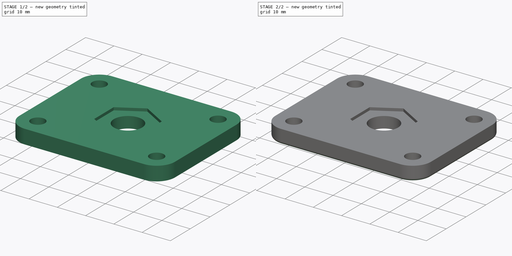
[diagram: build sequence overview — one tinted view per stage of 2, left to right]
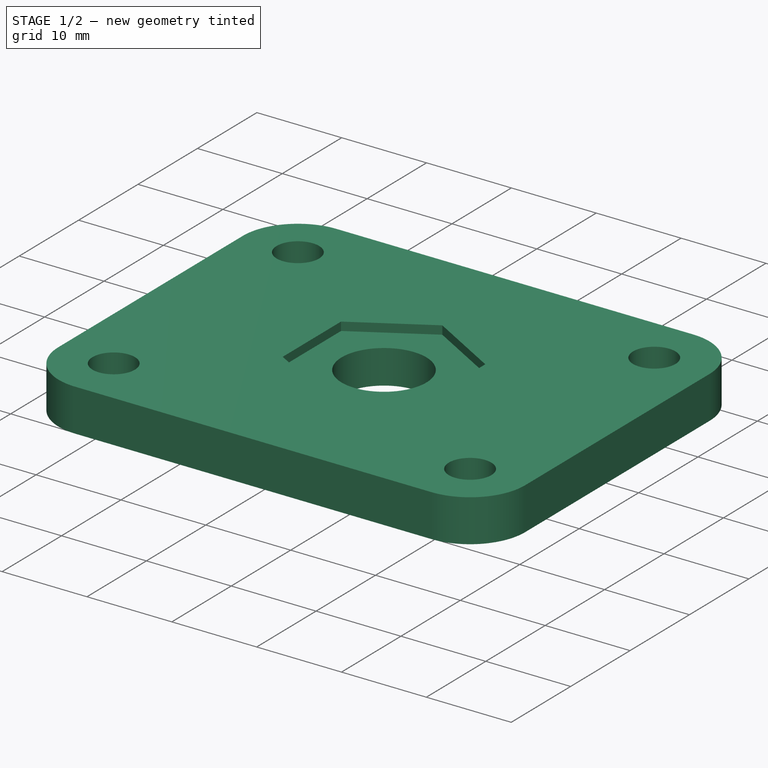
[diagram: stage 1 of 2 — iso view after this stage's code; geometry added in this stage tinted green]
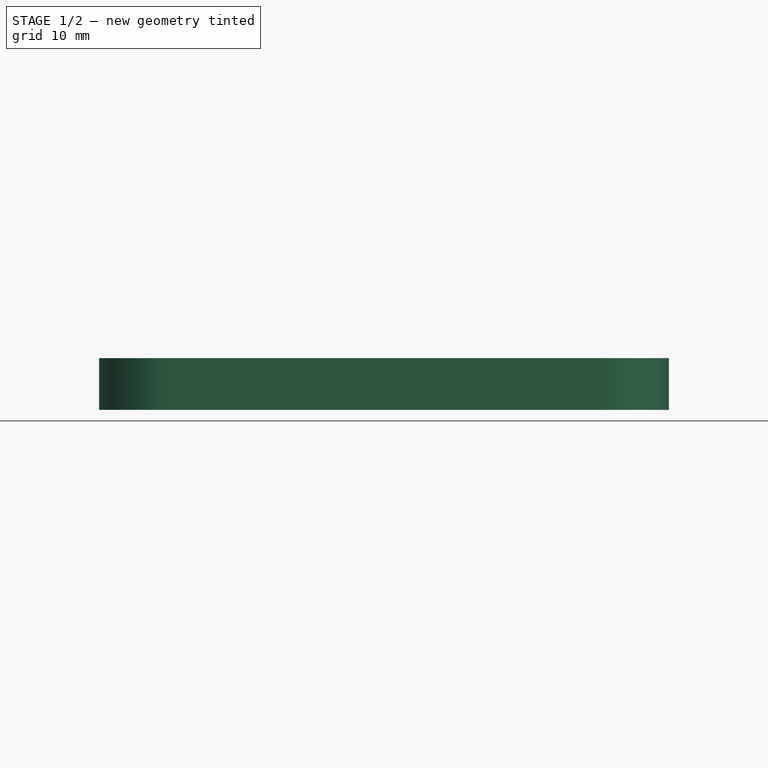
[diagram: stage 1 of 2 — front view after this stage's code; geometry added in this stage tinted green]
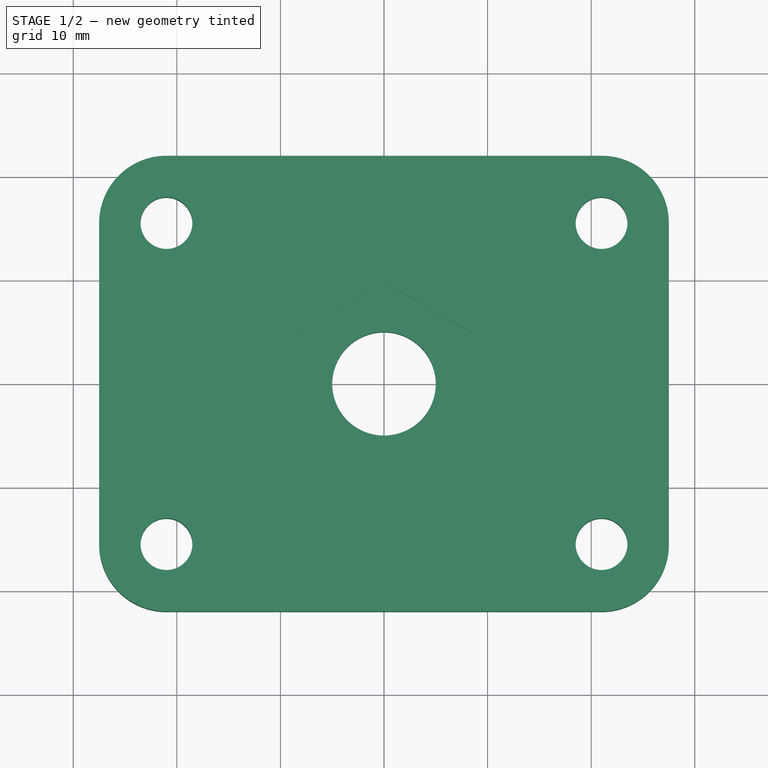
[diagram: stage 1 of 2 — top view after this stage's code; geometry added in this stage tinted green]
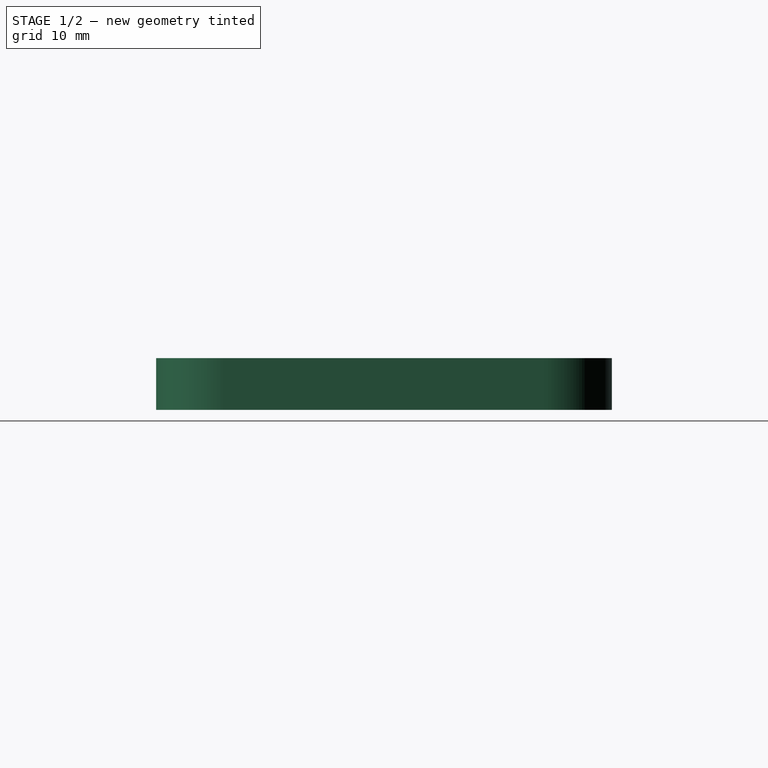
[diagram: stage 1 of 2 — right view after this stage's code; geometry added in this stage tinted green]
FCSTD DOCUMENT  (FreeCAD 0.19R24291 (Git))
Label: Соединительная планка для переворота
License: All rights reserved
LicenseURL: http://en.wikipedia.org/wiki/All_rights_reserved
objects: Sketcher::SketchObject×2, PartDesign::Pad×1, PartDesign::Pocket×1, PartDesign::Fillet×1, PartDesign::Body×1
note: 9 computed .brp shape members not serialized (recipe doc carries the construction recipe); baked Part::Feature solids carry a one-line shape summary decoded from their .brp

FEATURE [Sketcher::SketchObject] Sketch
  FullyConstrained = true
  MapMode = 5
  Support = -> [XY_Plane]
  sketch-geometry (21):
    g0: Circle CenterX=0 CenterY=0 CenterZ=0 NormalX=0 NormalY=0 NormalZ=1 AngleXU=0 Radius=5
    g1: LineSegment StartX=-21 StartY=22 StartZ=0 EndX=21 EndY=22 EndZ=0
    g2: LineSegment StartX=27.5 StartY=15.5 StartZ=0 EndX=27.5 EndY=-15.5 EndZ=0
    g3: LineSegment StartX=21 StartY=-22 StartZ=0 EndX=-21 EndY=-22 EndZ=0
    g4: LineSegment StartX=-27.5 StartY=-15.5 StartZ=0 EndX=-27.5 EndY=15.5 EndZ=0
    g5: Circle CenterX=-21 CenterY=15.5 CenterZ=0 NormalX=0 NormalY=0 NormalZ=1 AngleXU=0 Radius=2.5
    g6: Circle CenterX=21 CenterY=15.5 CenterZ=0 NormalX=0 NormalY=0 NormalZ=1 AngleXU=0 Radius=2.5
    g7: Circle CenterX=21 CenterY=-15.5 CenterZ=0 NormalX=0 NormalY=0 NormalZ=1 AngleXU=0 Radius=2.5
    g8: Circle CenterX=-21 CenterY=-15.5 CenterZ=0 NormalX=0 NormalY=0 NormalZ=1 AngleXU=0 Radius=2.5
    g9: LineSegment StartX=27.5 StartY=0 StartZ=0 EndX=0 EndY=0 EndZ=0
    g10: LineSegment StartX=-27.5 StartY=0 StartZ=0 EndX=0 EndY=0 EndZ=0
    g11: LineSegment StartX=0 StartY=22 StartZ=0 EndX=0 EndY=0 EndZ=0
    g12: LineSegment StartX=0 StartY=0 StartZ=0 EndX=0 EndY=-22 EndZ=0
    g13: LineSegment StartX=-21 StartY=15.5 StartZ=0 EndX=-27.5 EndY=15.5 EndZ=0
    g14: LineSegment StartX=21 StartY=15.5 StartZ=0 EndX=27.5 EndY=15.5 EndZ=0
    g15: LineSegment StartX=21 StartY=-15.5 StartZ=0 EndX=21 EndY=-22 EndZ=0
    g16: LineSegment StartX=21 StartY=15.5 StartZ=0 EndX=21 EndY=22 EndZ=0
    g17: ArcOfCircle CenterX=21 CenterY=15.5 CenterZ=0 NormalX=0 NormalY=0 NormalZ=1 AngleXU=0 Radius=6.5 StartAngle=-1.8e-15 EndAngle=1.5708
    g18: ArcOfCircle CenterX=-21 CenterY=15.5 CenterZ=0 NormalX=0 NormalY=0 NormalZ=1 AngleXU=0 Radius=6.5 StartAngle=1.5708 EndAngle=3.14159
    g19: ArcOfCircle CenterX=-21 CenterY=-15.5 CenterZ=0 NormalX=0 NormalY=0 NormalZ=1 AngleXU=0 Radius=6.5 StartAngle=3.14159 EndAngle=4.71239
    g20: ArcOfCircle CenterX=21 CenterY=-15.5 CenterZ=0 NormalX=0 NormalY=0 NormalZ=1 AngleXU=0 Radius=6.5 StartAngle=4.71239 EndAngle=6.28319
  constraints (57):
    c: Coincident(g0,g-1)
    c: Horizontal(g1)
    c: Horizontal(g3)
    c: Vertical(g2)
    c: Vertical(g4)
    c: Equal(g8,g5)
    c: Equal(g5,g6)
    c: Equal(g6,g7)
    c: Vertical(g7,g6)
    c: Vertical(g8,g5)
    c: Horizontal(g8,g7)
    c: Horizontal(g5,g6)
    c: Distance(g5,g6) = 42
    c: Diameter(g0) = 10
    c: Diameter(g7) = 5
    c: PointOnObject(g9,g2)
    c: Coincident(g9,g0)
    c: Horizontal(g9)
    c: PointOnObject(g10,g4)
    c: Coincident(g10,g0)
    c: Horizontal(g10)
    c: PointOnObject(g11,g1)
    c: Coincident(g11,g0)
    c: Vertical(g11)
    c: Coincident(g12,g0)
    c: PointOnObject(g12,g3)
    c: Vertical(g12)
    c: Coincident(g13,g5)
    c: PointOnObject(g13,g4)
    c: Horizontal(g13)
    c: Coincident(g14,g6)
    c: PointOnObject(g14,g2)
    c: Horizontal(g14)
    c: Coincident(g15,g7)
    c: PointOnObject(g15,g3)
    c: Vertical(g15)
    c: Coincident(g16,g6)
    c: PointOnObject(g16,g1)
    c: Vertical(g16)
    c: Equal(g14,g13)
    c: Equal(g16,g15)
    c: Equal(g12,g11)
    c: Equal(g10,g9)
    c: Tangent(g1,g17) = 1.5708
    c: Tangent(g2,g17) = 1.5708
    c: Tangent(g1,g18) = 1.5708
    c: Tangent(g4,g18) = 1.5708
    c: Tangent(g3,g19) = 1.5708
    c: Tangent(g4,g19) = 1.5708
    c: Tangent(g2,g20) = 1.5708
    c: Tangent(g3,g20) = 1.5708
    c: Equal(g17,g20)
    c: Equal(g20,g19)
    c: Equal(g19,g18)
    c: Distance(g9,g10) = 55
    c: Distance(g11,g12) = 44
    c: Coincident(g7,g20)
FEATURE [PartDesign::Pad] Pad
  Direction = (1,1,1)
  Length = 5
  Length2 = 100
  Profile = -> Sketch
  Type = 0
FEATURE [Sketcher::SketchObject] Sketch001
  FullyConstrained = true
  MapMode = 5
  Placement = pos=(0,0,5) rot=(0,0,1;0rad)
  Support = -> [Pad]
  sketch-geometry (7):
    g0: LineSegment StartX=8.5 StartY=4.90748 StartZ=0 EndX=1.3216e-12 EndY=9.81495 EndZ=0
    g1: LineSegment StartX=1.3216e-12 StartY=9.81495 StartZ=0 EndX=-8.5 EndY=4.90748 EndZ=0
    g2: LineSegment StartX=-8.5 StartY=4.90748 StartZ=0 EndX=-8.5 EndY=-4.90748 EndZ=0
    g3: LineSegment StartX=-8.5 StartY=-4.90748 StartZ=0 EndX=4.743e-13 EndY=-9.81495 EndZ=0
    g4: LineSegment StartX=4.743e-13 StartY=-9.81495 StartZ=0 EndX=8.5 EndY=-4.90748 EndZ=0
    g5: LineSegment StartX=8.5 StartY=-4.90748 StartZ=0 EndX=8.5 EndY=4.90748 EndZ=0
    g6: Circle CenterX=0 CenterY=0 CenterZ=0 NormalX=0 NormalY=0 NormalZ=1 AngleXU=0 Radius=9.81495
  constraints (16):
    c: Coincident(g0,g1)
    c: Coincident(g1,g2)
    c: Coincident(g2,g3)
    c: Coincident(g3,g4)
    c: Coincident(g4,g5)
    c: Coincident(g5,g0)
    c: Equal(g0, g1-g5) x5
    c: PointOnObject(g0,g6)
    c: PointOnObject(g1,g6)
    c: PointOnObject(g2,g6)
    c: PointOnObject(g3,g6)
    c: PointOnObject(g4,g6)
    c: PointOnObject(g5,g6)
    c: Coincident(g6,g-1)
    c: Vertical(g5)
    c: Distance(g4,g2) = 17
FEATURE [PartDesign::Pocket] Pocket
  BaseFeature = -> Pad
  Length = 1
  Length2 = 100
  Profile = -> Sketch001
  Type = 0
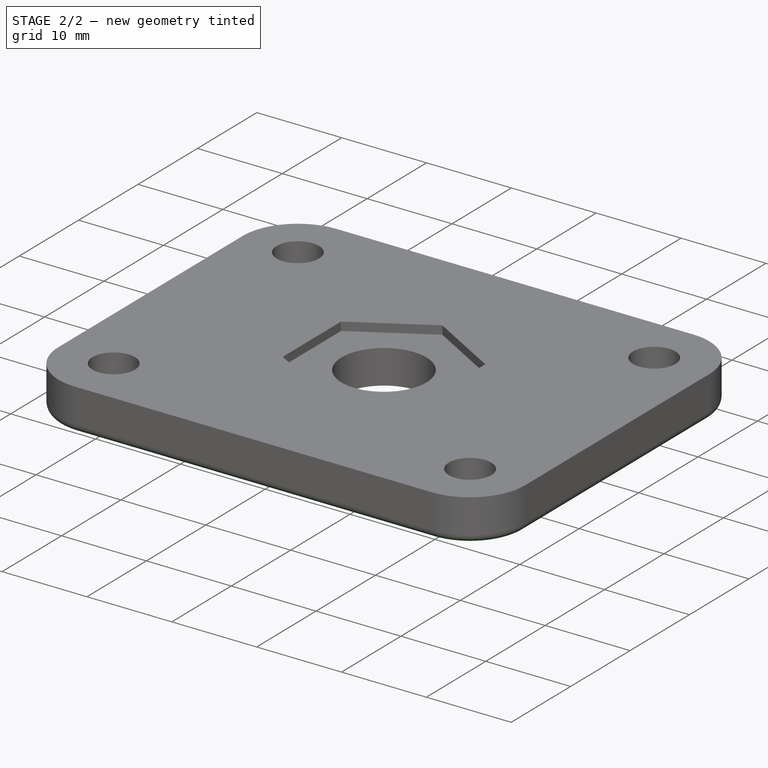
[diagram: stage 2 of 2 — iso view after this stage's code; geometry added in this stage tinted green]
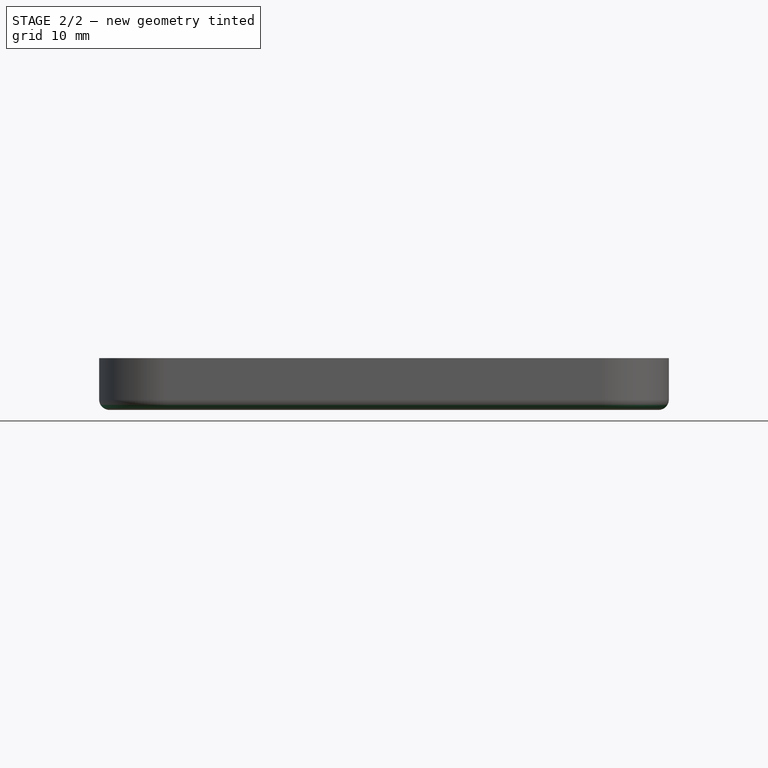
[diagram: stage 2 of 2 — front view after this stage's code; geometry added in this stage tinted green]
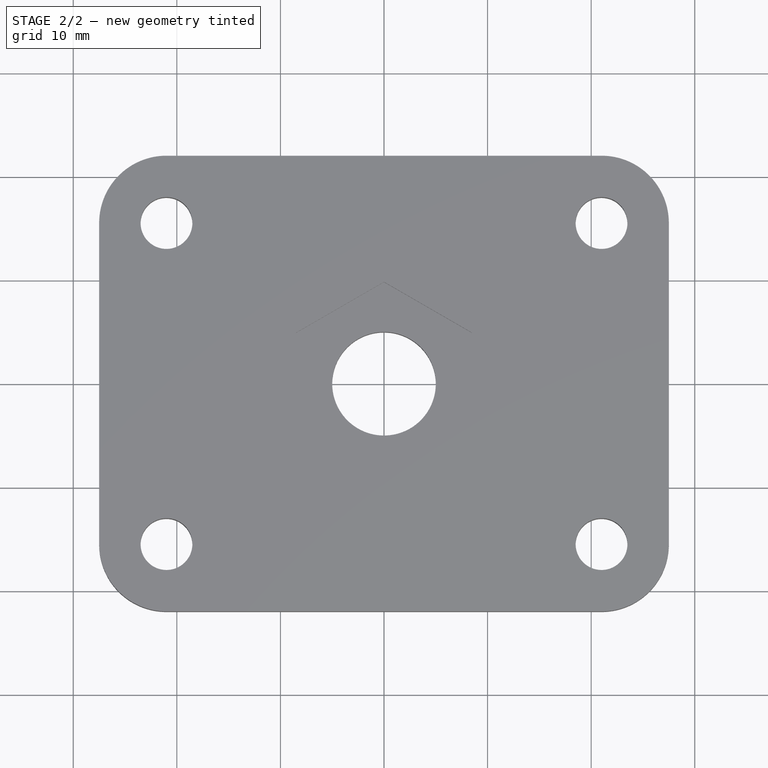
[diagram: stage 2 of 2 — top view after this stage's code; geometry added in this stage tinted green]
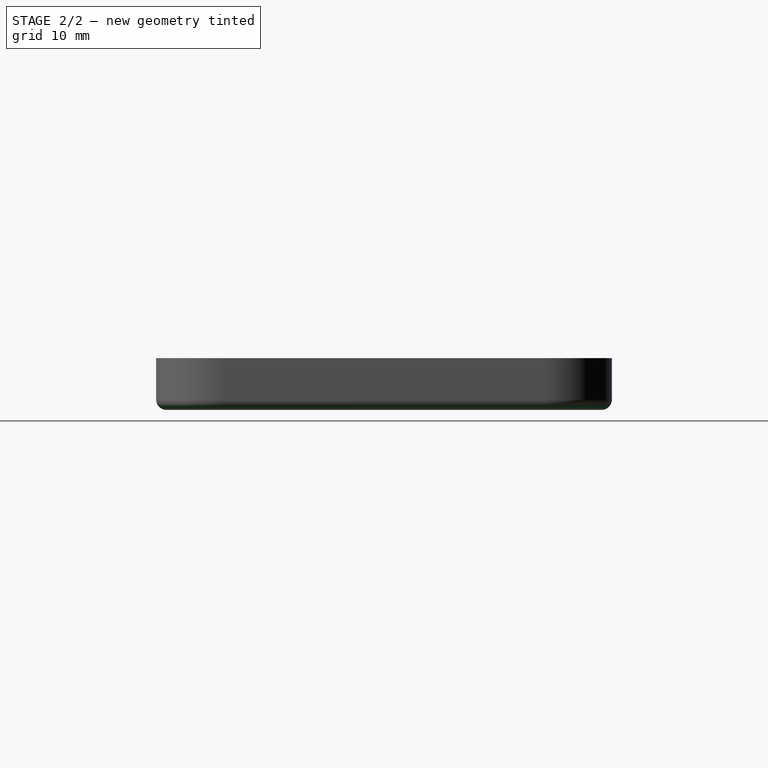
[diagram: stage 2 of 2 — right view after this stage's code; geometry added in this stage tinted green]
FEATURE [PartDesign::Fillet] Fillet
  Base = -> Pocket [Edge12,Edge13,Edge11,Edge9,Edge3,Edge6,Edge15,Edge14]
  BaseFeature = -> Pocket
  Radius = 1
  SupportTransform = false
FEATURE [PartDesign::Body] Body
  Group = -> [Sketch,Pad,Sketch001,Pocket,Fillet]
  Origin = -> Origin
  Tip = -> Fillet
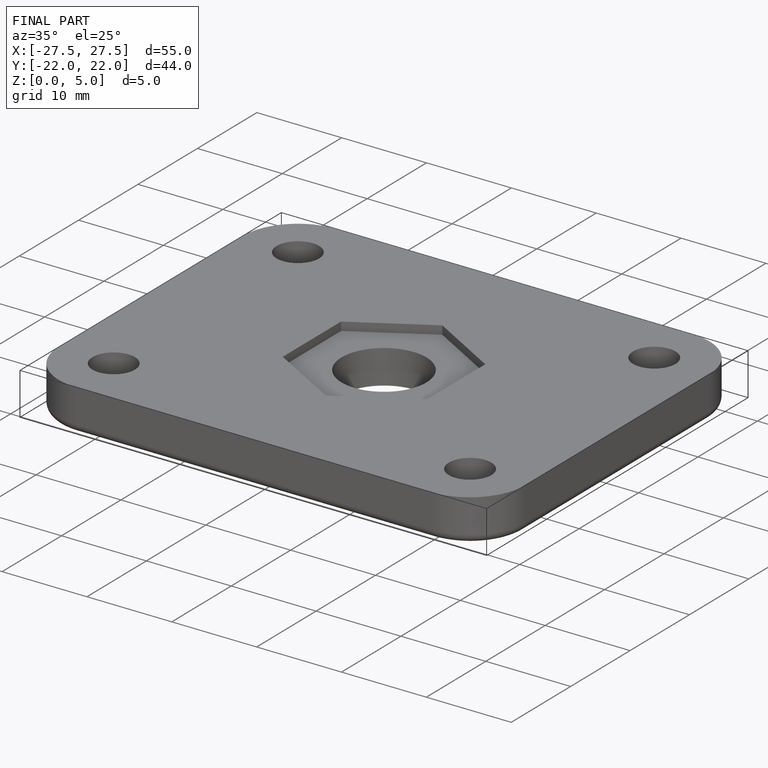
[diagram: finished part — iso view with bounding-box wireframe]
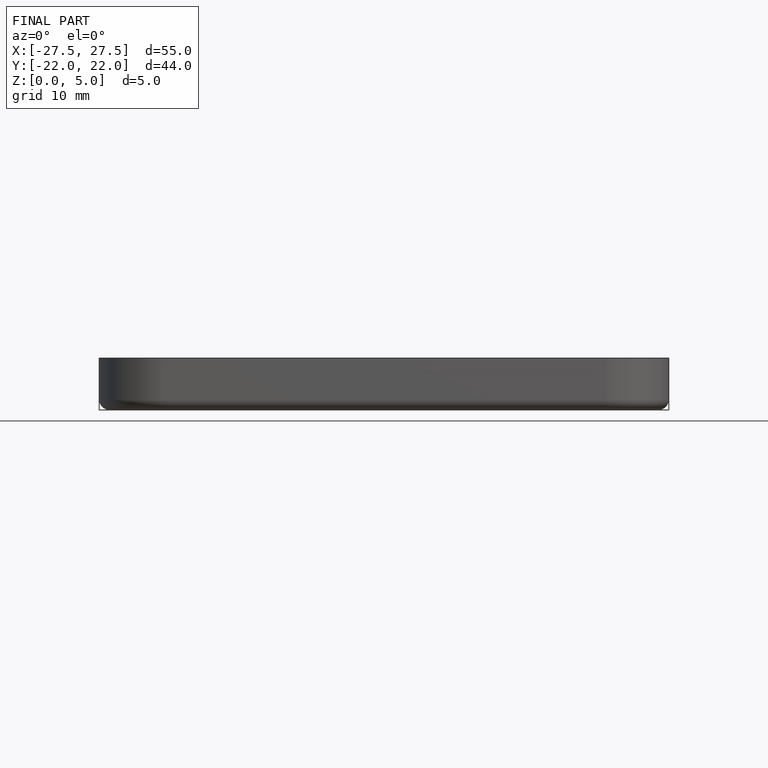
[diagram: finished part — front view with bounding-box wireframe]
